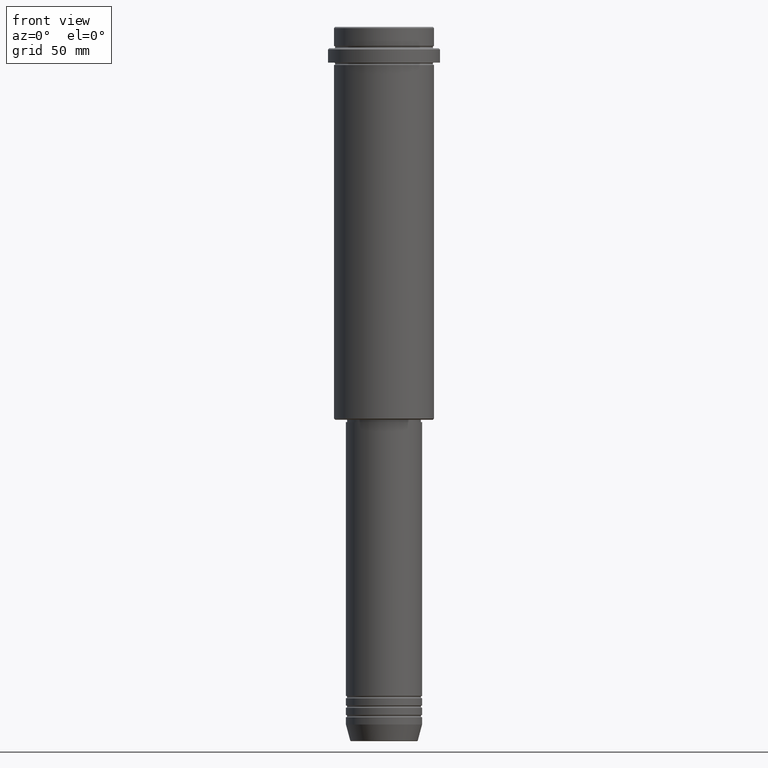
[diagram: clean part render]
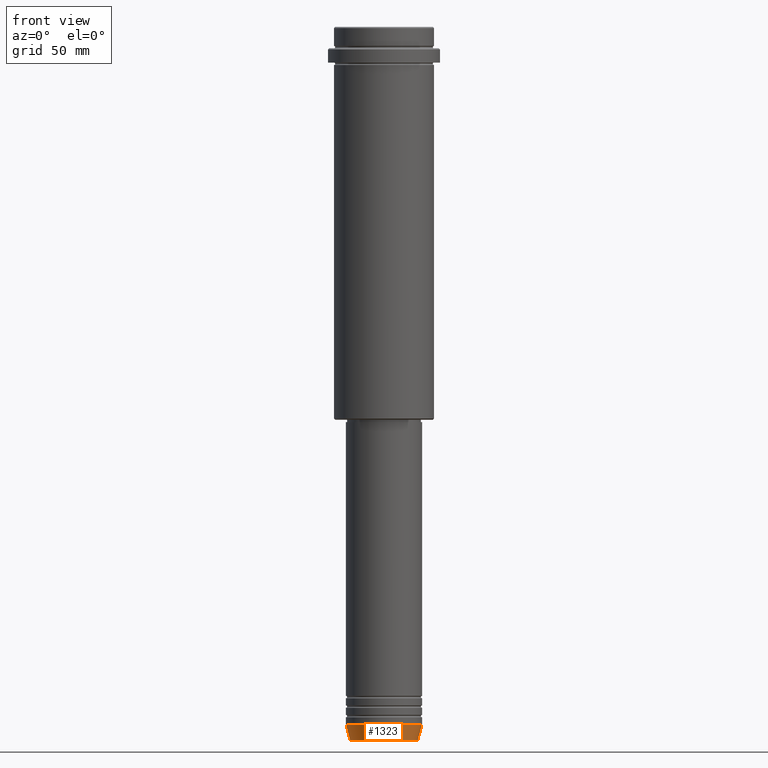
[diagram: same view with one face highlighted and labeled with its STEP entity id]
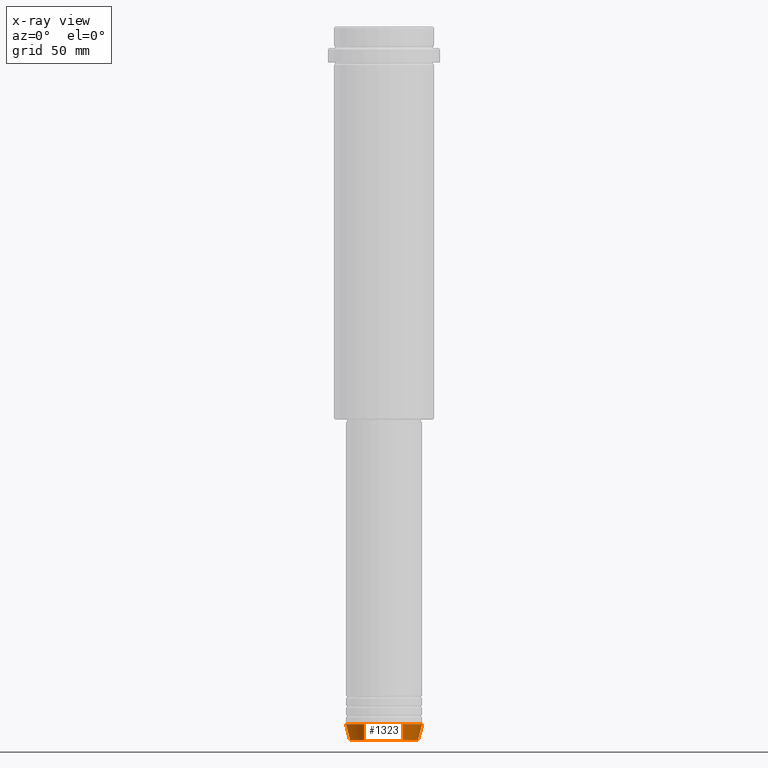
[diagram: x-ray of the same camera — body ghosted, the highlighted face saturated]
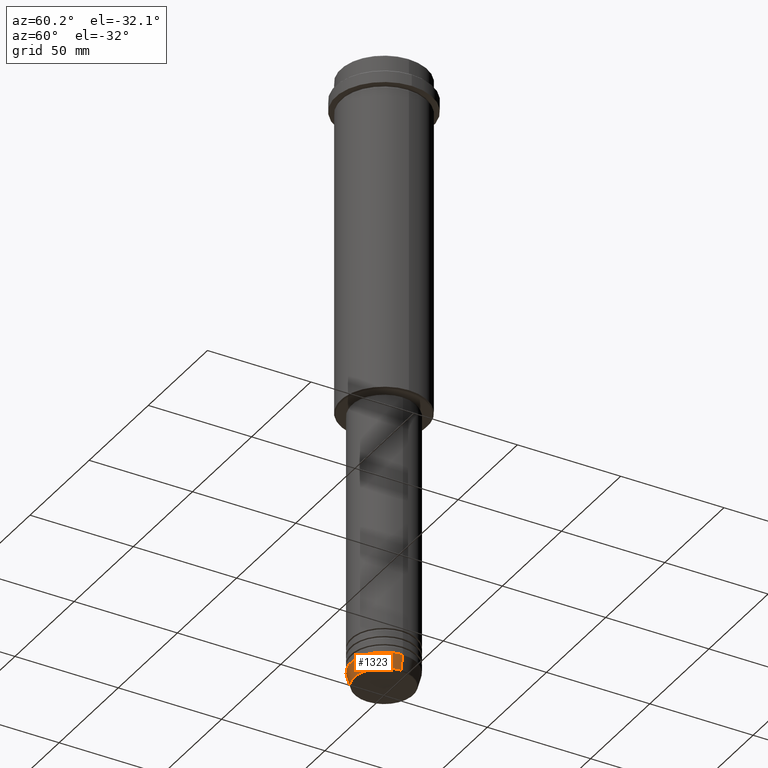
[diagram: same view with one face highlighted and labeled with its STEP entity id]
A machine part, front view. The second image highlights one B-rep face of the part: STEP entity #1323.
The next image is the same camera in x-ray: the body ghosted, the highlighted face saturated — about 0% of this face is hidden behind the body in this view.
A second angle (auxiliary view) of the same face is appended — the face is thin or edge-on in the first view.
In plain terms, the highlighted conical surface has half-angle 15 deg.
Its self-contained STEP definition (entity closure, byte-faithful):
#88 = CARTESIAN_POINT ( 'NONE',  ( 16.00000000000000000, 0.000000000000000000, -293.0000000000000568 ) ) ;
#92 = ORIENTED_EDGE ( 'NONE', *, *, #506, .T. ) ;
#198 = ORIENTED_EDGE ( 'NONE', *, *, #1222, .F. ) ;
#207 = CARTESIAN_POINT ( 'NONE',  ( 0.000000000000000000, 0.000000000000000000, -293.0000000000000568 ) ) ;
#218 = CARTESIAN_POINT ( 'NONE',  ( -16.00000000000000000, 1.959434878635765131E-15, -293.0000000000000568 ) ) ;
#243 = CARTESIAN_POINT ( 'NONE',  ( -16.00000000000000000, 1.959434878635765131E-15, -293.0000000000000568 ) ) ;
#280 = VECTOR ( 'NONE', #660, 1000.000000000000000 ) ;
#294 = DIRECTION ( 'NONE',  ( -0.000000000000000000, -0.000000000000000000, 1.000000000000000000 ) ) ;
#304 = FACE_OUTER_BOUND ( 'NONE', #1331, .T. ) ;
#308 = VERTEX_POINT ( 'NONE', #1002 ) ;
#314 = CARTESIAN_POINT ( 'NONE',  ( 14.22365507213718772, 0.000000000000000000, -299.6294095225512706 ) ) ;
#317 = CARTESIAN_POINT ( 'NONE',  ( 16.00000000000000000, 0.000000000000000000, -293.0000000000000568 ) ) ;
#329 = CIRCLE ( 'NONE', #1142, 14.22365507213718772 ) ;
#489 = CARTESIAN_POINT ( 'NONE',  ( 0.000000000000000000, 0.000000000000000000, -299.6294095225512706 ) ) ;
#506 = EDGE_CURVE ( 'NONE', #308, #1306, #329, .T. ) ;
#509 = DIRECTION ( 'NONE',  ( -0.000000000000000000, -0.000000000000000000, 1.000000000000000000 ) ) ;
#560 = EDGE_CURVE ( 'NONE', #1306, #1344, #1052, .T. ) ;
#592 = DIRECTION ( 'NONE',  ( 1.000000000000000000, 0.000000000000000000, 0.000000000000000000 ) ) ;
#601 = DIRECTION ( 'NONE',  ( -0.000000000000000000, -0.000000000000000000, 1.000000000000000000 ) ) ;
#616 = EDGE_CURVE ( 'NONE', #308, #1073, #873, .T. ) ;
#642 = ORIENTED_EDGE ( 'NONE', *, *, #560, .T. ) ;
#643 = DIRECTION ( 'NONE',  ( 1.000000000000000000, 0.000000000000000000, 0.000000000000000000 ) ) ;
#660 = DIRECTION ( 'NONE',  ( -0.2588190451025213501, 3.169619151431772337E-17, 0.9659258262890680902 ) ) ;
#732 = DIRECTION ( 'NONE',  ( 0.2588190451025213501, 0.000000000000000000, 0.9659258262890680902 ) ) ;
#761 = ORIENTED_EDGE ( 'NONE', *, *, #616, .F. ) ;
#813 = VECTOR ( 'NONE', #732, 1000.000000000000000 ) ;
#819 = CONICAL_SURFACE ( 'NONE', #1094, 16.00000000000000000, 0.2617993877991500740 ) ;
#873 = LINE ( 'NONE', #218, #280 ) ;
#944 = DIRECTION ( 'NONE',  ( 1.000000000000000000, 0.000000000000000000, 0.000000000000000000 ) ) ;
#975 = CIRCLE ( 'NONE', #1051, 16.00000000000000000 ) ;
#1002 = CARTESIAN_POINT ( 'NONE',  ( -14.22365507213718772, 1.850665122131323337E-15, -299.6294095225512706 ) ) ;
#1051 = AXIS2_PLACEMENT_3D ( 'NONE', #1154, #509, #592 ) ;
#1052 = LINE ( 'NONE', #317, #813 ) ;
#1073 = VERTEX_POINT ( 'NONE', #243 ) ;
#1094 = AXIS2_PLACEMENT_3D ( 'NONE', #207, #294, #643 ) ;
#1142 = AXIS2_PLACEMENT_3D ( 'NONE', #489, #601, #944 ) ;
#1154 = CARTESIAN_POINT ( 'NONE',  ( 0.000000000000000000, 0.000000000000000000, -293.0000000000000568 ) ) ;
#1222 = EDGE_CURVE ( 'NONE', #1073, #1344, #975, .T. ) ;
#1306 = VERTEX_POINT ( 'NONE', #314 ) ;
#1323 = ADVANCED_FACE ( 'NONE', ( #304 ), #819, .T. ) ;
#1331 = EDGE_LOOP ( 'NONE', ( #761, #92, #642, #198 ) ) ;
#1344 = VERTEX_POINT ( 'NONE', #88 ) ;